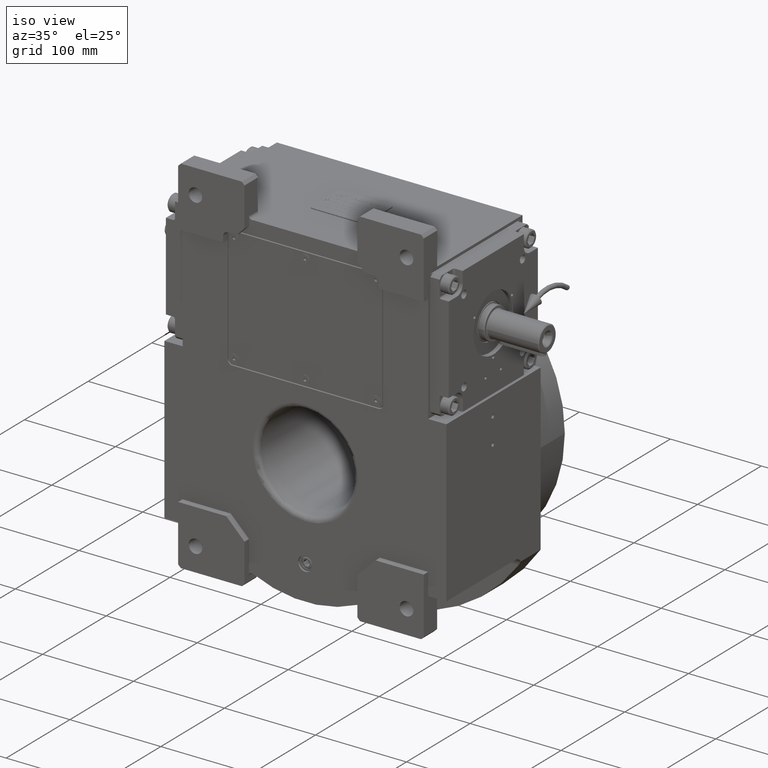
[diagram: clean part render]
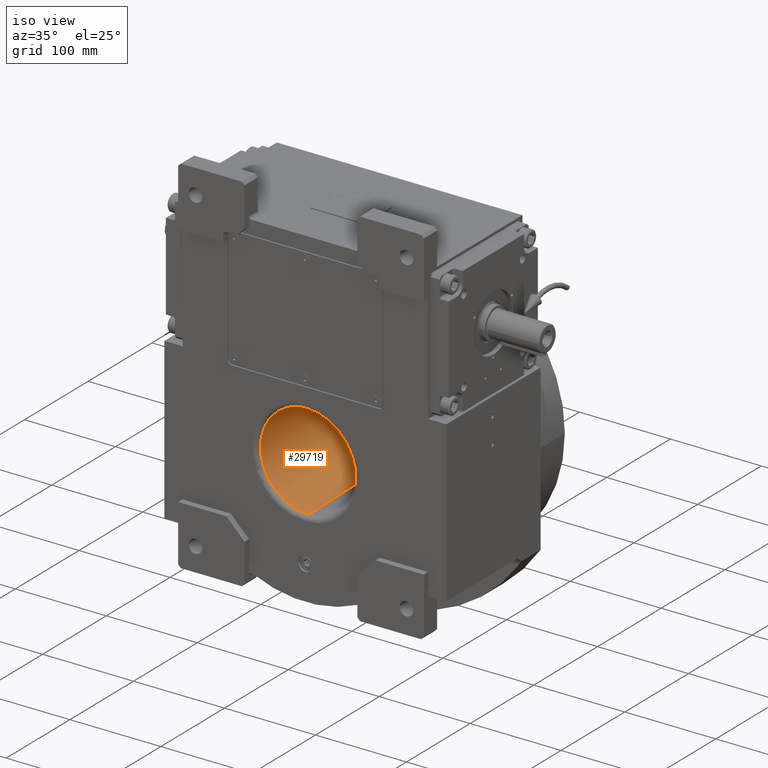
[diagram: same view with one face highlighted and labeled with its STEP entity id]
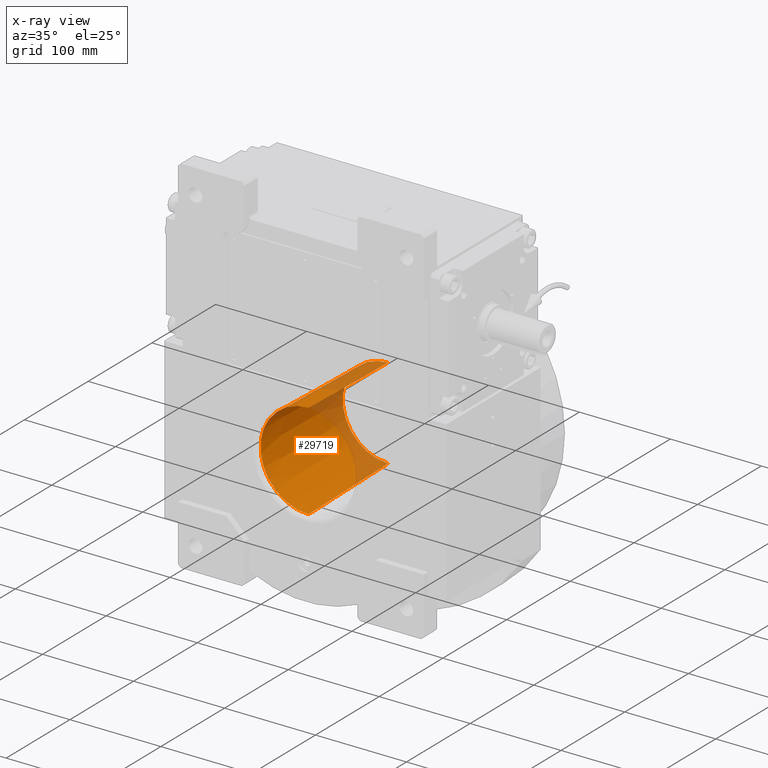
[diagram: x-ray of the same camera — body ghosted, the highlighted face saturated]
A machine part, iso view. The second image highlights one B-rep face of the part: STEP entity #29719.
The next image is the same camera in x-ray: the body ghosted, the highlighted face saturated — about 24% of this face is hidden behind the body in this view.
In plain terms, the highlighted conical surface has half-angle 1.292 deg.
Its self-contained STEP definition (entity closure, byte-faithful):
#5025 = CIRCLE ( 'NONE', #16300, 52.88976140256119152 ) ;
#6284 = DIRECTION ( 'NONE',  ( 0.9817544653963818924, -1.960699399857663348E-08, -0.1901530164742704643 ) ) ;
#6674 = CARTESIAN_POINT ( 'NONE',  ( 5.180066373969149615E-08, -68.11275406274060629, 4.736386318413870025E-15 ) ) ;
#10541 = EDGE_CURVE ( 'NONE', #32071, #32240, #5025, .T. ) ;
#10628 = CARTESIAN_POINT ( 'NONE',  ( -1.295425538949331941E-14, -68.11275327462179519, 52.88976135205919604 ) ) ;
#11631 = CARTESIAN_POINT ( 'NONE',  ( 0.000000000000000000, 2232.333333333314840, -3.962844522719785252E-13 ) ) ;
#12878 = VERTEX_POINT ( 'NONE', #59736 ) ;
#13944 = DIRECTION ( 'NONE',  ( -2.761658737181604074E-18, 0.9997457016474147196, 0.02255065492437784494 ) ) ;
#15896 = LINE ( 'NONE', #10628, #41032 ) ;
#16271 = CONICAL_SURFACE ( 'NONE', #34186, 1.000000000000000000, 0.02255256665030591981 ) ;
#16300 = AXIS2_PLACEMENT_3D ( 'NONE', #6674, #29472, #60122 ) ;
#26465 = CARTESIAN_POINT ( 'NONE',  ( -3.366447261396295104E-11, -68.11275327462200835, 52.88976135205919604 ) ) ;
#27721 = CARTESIAN_POINT ( 'NONE',  ( -5.647091595521470526E-12, 57.06765196477320501, 50.06614318876450653 ) ) ;
#29472 = DIRECTION ( 'NONE',  ( 2.310691404686464099E-08, 0.9999999999999997780, 1.490116125507999888E-08 ) ) ;
#29593 = ORIENTED_EDGE ( 'NONE', *, *, #53852, .T. ) ;
#29719 = ADVANCED_FACE ( 'NONE', ( #59768 ), #16271, .F. ) ;
#31313 = EDGE_LOOP ( 'NONE', ( #54387, #29593, #46300, #38430 ) ) ;
#32071 = VERTEX_POINT ( 'NONE', #68304 ) ;
#32240 = VERTEX_POINT ( 'NONE', #26465 ) ;
#33009 = DIRECTION ( 'NONE',  ( 0.000000000000000000, 0.000000000000000000, 1.000000000000000000 ) ) ;
#34186 = AXIS2_PLACEMENT_3D ( 'NONE', #11631, #69217, #33009 ) ;
#37367 = CIRCLE ( 'NONE', #64346, 50.06614321695211345 ) ;
#38430 = ORIENTED_EDGE ( 'NONE', *, *, #10541, .F. ) ;
#39572 = LINE ( 'NONE', #66997, #42199 ) ;
#41032 = VECTOR ( 'NONE', #50207, 1000.000000000000114 ) ;
#42199 = VECTOR ( 'NONE', #13944, 1000.000000000000114 ) ;
#46300 = ORIENTED_EDGE ( 'NONE', *, *, #56313, .F. ) ;
#50107 = CARTESIAN_POINT ( 'NONE',  ( 3.083076751974459965E-08, 57.06765196477320501, -2.539431900768300017E-15 ) ) ;
#50207 = DIRECTION ( 'NONE',  ( 5.523317474363207377E-18, 0.9997457016474147196, -0.02255065492437819882 ) ) ;
#53852 = EDGE_CURVE ( 'NONE', #12878, #58885, #37367, .T. ) ;
#54387 = ORIENTED_EDGE ( 'NONE', *, *, #67015, .T. ) ;
#54455 = DIRECTION ( 'NONE',  ( 1.997138262492154581E-08, 0.9999999999999997780, 6.123233971614108296E-17 ) ) ;
#56313 = EDGE_CURVE ( 'NONE', #32240, #58885, #15896, .T. ) ;
#58885 = VERTEX_POINT ( 'NONE', #27721 ) ;
#59736 = CARTESIAN_POINT ( 'NONE',  ( 5.632922360699180090E-12, 57.06765196477320501, -50.06614318876450653 ) ) ;
#59768 = FACE_OUTER_BOUND ( 'NONE', #31313, .T. ) ;
#60122 = DIRECTION ( 'NONE',  ( 0.9882587347805640299, -2.055886669902873894E-08, -0.1527896368538074756 ) ) ;
#64346 = AXIS2_PLACEMENT_3D ( 'NONE', #50107, #54455, #6284 ) ;
#66997 = CARTESIAN_POINT ( 'NONE',  ( 6.477127694746659705E-15, -68.11275327462179519, -52.88976135205919604 ) ) ;
#67015 = EDGE_CURVE ( 'NONE', #32071, #12878, #39572, .T. ) ;
#68304 = CARTESIAN_POINT ( 'NONE',  ( 3.366158563859759886E-11, -68.11275327462200835, -52.88976135205919604 ) ) ;
#69217 = DIRECTION ( 'NONE',  ( 0.000000000000000000, -1.000000000000000000, 1.836909530733564901E-16 ) ) ;